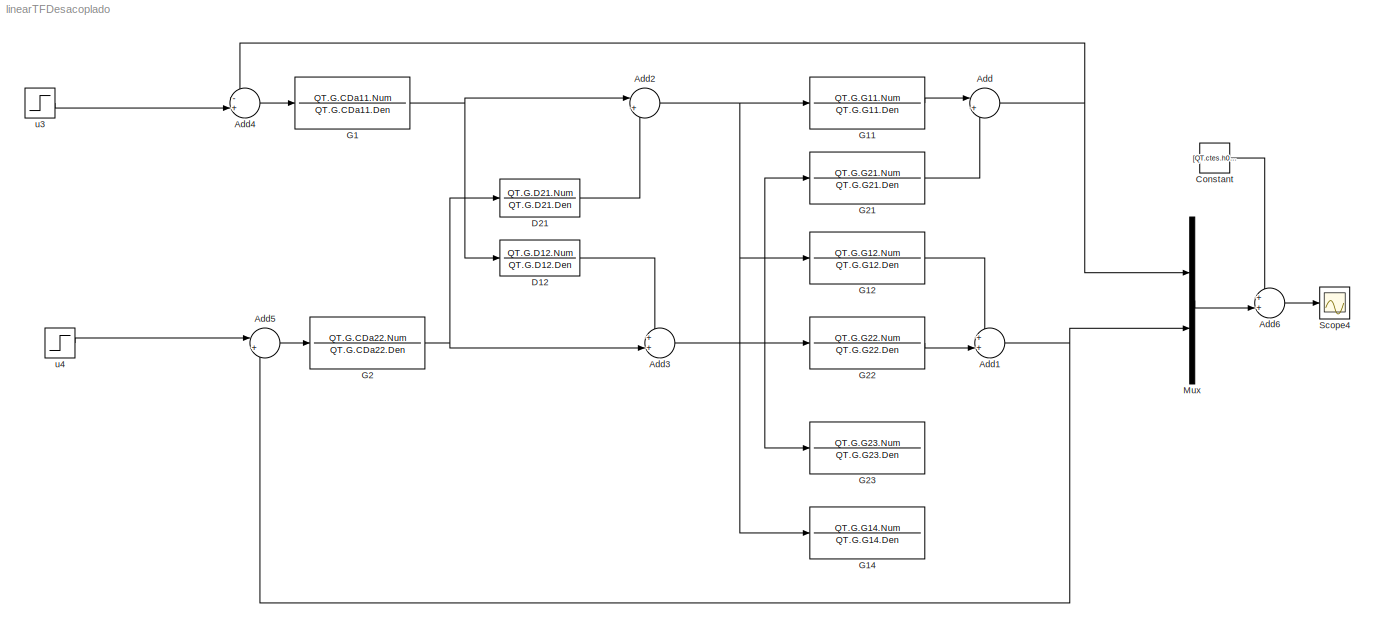
MODEL linearTFDesacoplado
KIND model
BLOCK [Sum] Add
  IconShape = round
  InputSameDT = off
  Inputs = |++
  OutDataTypeStr = Inherit: Inherit via internal rule
  Ports = [2, 1]
  SID = 11
  SaturateOnIntegerOverflow = off
BLOCK [Sum] Add1
  IconShape = round
  InputSameDT = off
  Inputs = ++|
  OutDataTypeStr = Inherit: Inherit via internal rule
  Ports = [2, 1]
  SID = 12
  SaturateOnIntegerOverflow = off
BLOCK [Sum] Add2
  IconShape = round
  InputSameDT = off
  Inputs = |++
  OutDataTypeStr = Inherit: Inherit via internal rule
  Ports = [2, 1]
  SID = 29
  SaturateOnIntegerOverflow = off
BLOCK [Sum] Add3
  IconShape = round
  InputSameDT = off
  Inputs = ++|
  OutDataTypeStr = Inherit: Inherit via internal rule
  Ports = [2, 1]
  SID = 31
  SaturateOnIntegerOverflow = off
BLOCK [Sum] Add4
  IconShape = round
  InputSameDT = off
  Inputs = -+|
  OutDataTypeStr = Inherit: Inherit via internal rule
  Ports = [2, 1]
  SID = 78
  SaturateOnIntegerOverflow = off
BLOCK [Sum] Add5
  IconShape = round
  InputSameDT = off
  Inputs = |+-
  OutDataTypeStr = Inherit: Inherit via internal rule
  Ports = [2, 1]
  SID = 83
  SaturateOnIntegerOverflow = off
BLOCK [Sum] Add6
  IconShape = round
  InputSameDT = off
  Inputs = ++|
  OutDataTypeStr = Inherit: Inherit via internal rule
  Ports = [2, 1]
  SID = 93
  SaturateOnIntegerOverflow = off
BLOCK [Constant] Constant
  SID = 94
  Value = [QT.ctes.h0(1) QT.ctes.h0(2)]
BLOCK [TransferFcn] D12
  Denominator = QT.G.D12.Den
  Numerator = QT.G.D12.Num
  SID = 36
BLOCK [TransferFcn] D21
  Denominator = QT.G.D21.Den
  Numerator = QT.G.D21.Num
  SID = 32
BLOCK [TransferFcn] G1
  Denominator = QT.G.CDa11.Den
  Numerator = QT.G.CDa11.Num
  SID = 76
BLOCK [TransferFcn] G11
  Denominator = QT.G.G11.Den
  Numerator = QT.G.G11.Num
  SID = 5
BLOCK [TransferFcn] G12
  Denominator = QT.G.G12.Den
  Numerator = QT.G.G12.Num
  SID = 8
BLOCK [TransferFcn] G14
  Denominator = QT.G.G14.Den
  Numerator = QT.G.G14.Num
  SID = 28
BLOCK [TransferFcn] G2
  Denominator = QT.G.CDa22.Den
  Numerator = QT.G.CDa22.Num
  SID = 82
BLOCK [TransferFcn] G21
  Denominator = QT.G.G21.Den
  Numerator = QT.G.G21.Num
  SID = 7
BLOCK [TransferFcn] G22
  Denominator = QT.G.G22.Den
  Numerator = QT.G.G22.Num
  SID = 9
BLOCK [TransferFcn] G23
  Denominator = QT.G.G23.Den
  Numerator = QT.G.G23.Num
  SID = 27
BLOCK [Mux] Mux
  DisplayOption = bar
  Inputs = 2
  Ports = [2, 1]
  SID = 17
BLOCK [Scope] Scope4
  DataFormat = StructureWithTime
  Floating = off
  LimitDataPoints = off
  NumInputPorts = 1
  Ports = [1]
  SID = 96
  SampleTime = 0
  SaveName = Simulado
  SaveToWorkspace = on
  TimeRange = 10
BLOCK [Step] u3
  SID = 91
  SampleTime = 0
  Time = 200
BLOCK [Step] u4
  SID = 92
  SampleTime = 0
  Time = 500
NET Add1:1 -> Add5:2, Mux:2
NET Add2:1 -> G11:1, G12:1, G14:1
NET Add3:1 -> G21:1, G22:1, G23:1
LINE Add4:1 -> G1:1
LINE Add5:1 -> G2:1
LINE Add6:1 -> Scope4:1
NET Add:1 -> Add4:1, Mux:1
LINE Constant:1 -> Add6:1
LINE D12:1 -> Add3:1
LINE D21:1 -> Add2:2
LINE G11:1 -> Add:1
LINE G12:1 -> Add1:1
NET G1:1 -> Add2:1, D12:1
LINE G21:1 -> Add:2
LINE G22:1 -> Add1:2
NET G2:1 -> Add3:2, D21:1
LINE Mux:1 -> Add6:2
LINE u3:1 -> Add4:2
LINE u4:1 -> Add5:1
note: NET lines group one-source signal fan-out (src -> all destinations, sorted); 1:1 wires keep LINE
